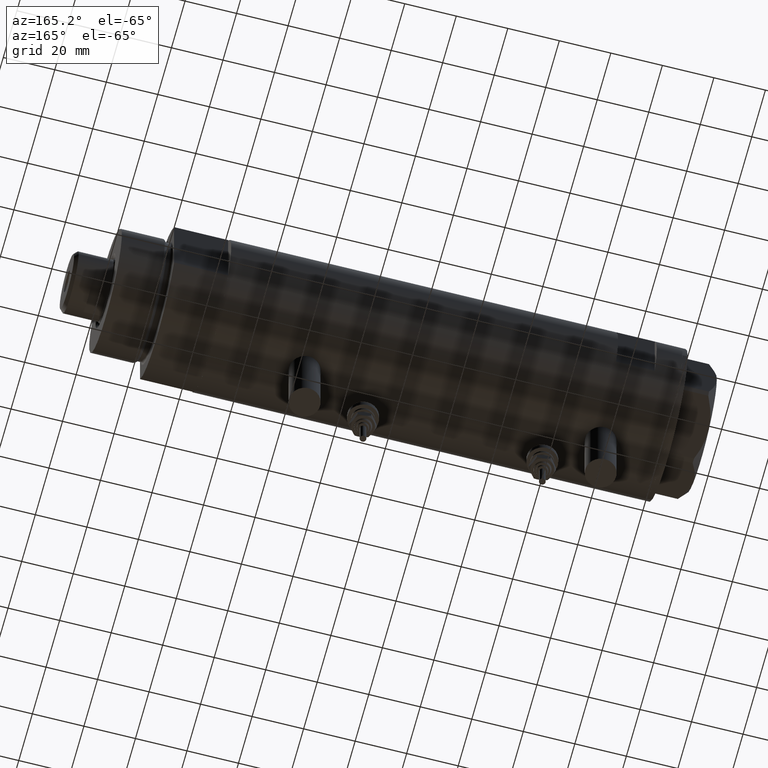
[diagram: clean part render]
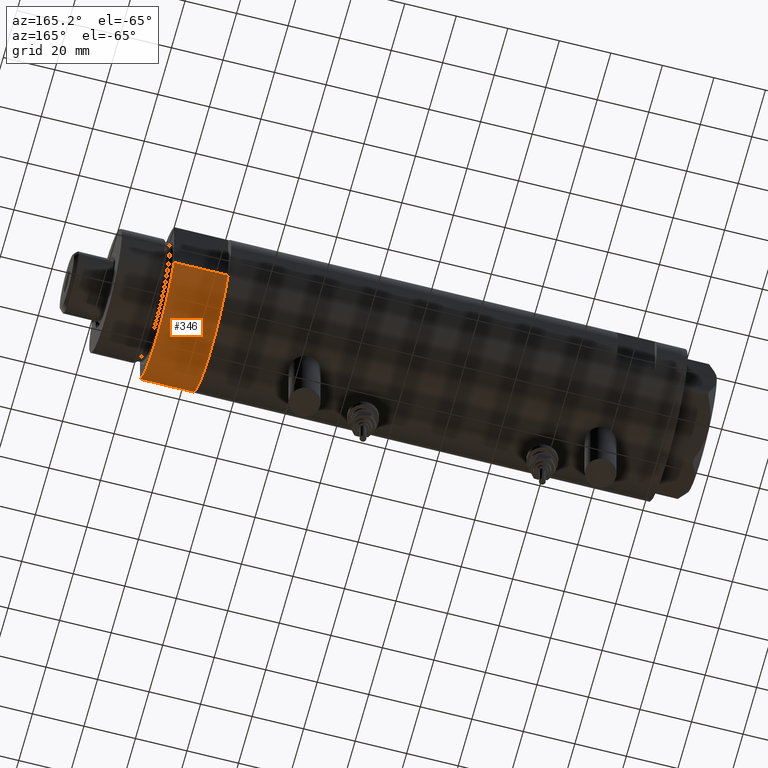
[diagram: same view with one face highlighted and labeled with its STEP entity id]
A machine part, auxiliary view. The second image highlights one B-rep face of the part: STEP entity #346.
In plain terms, the highlighted cylindrical surface (partial cylindrical patch) has radius 29.5 mm, axis along (-1, -0, 0).
Its self-contained STEP definition (entity closure, byte-faithful):
#36 = CARTESIAN_POINT ( 'NONE',  ( 15.66045976336583045, -25.00000000000000000, 21.00000000000000355 ) ) ;
#109 = CIRCLE ( 'NONE', #1351, 29.50000000000000355 ) ;
#177 = AXIS2_PLACEMENT_3D ( 'NONE', #3721, #2893, #1990 ) ;
#336 = DIRECTION ( 'NONE',  ( -0.000000000000000000, -0.000000000000000000, 1.000000000000000000 ) ) ;
#346 = ADVANCED_FACE ( 'NONE', ( #4848 ), #5087, .T. ) ;
#739 = EDGE_CURVE ( 'NONE', #1236, #3793, #3086, .T. ) ;
#955 = CARTESIAN_POINT ( 'NONE',  ( 15.66045976336583401, -25.00000000000000000, 0.000000000000000000 ) ) ;
#1016 = EDGE_CURVE ( 'NONE', #3899, #4170, #3800, .T. ) ;
#1236 = VERTEX_POINT ( 'NONE', #3059 ) ;
#1346 = DIRECTION ( 'NONE',  ( 1.000000000000000000, 0.000000000000000000, 0.000000000000000000 ) ) ;
#1349 = ORIENTED_EDGE ( 'NONE', *, *, #1016, .T. ) ;
#1351 = AXIS2_PLACEMENT_3D ( 'NONE', #4166, #4592, #1346 ) ;
#1514 = DIRECTION ( 'NONE',  ( 1.000000000000000000, 0.000000000000000000, 0.000000000000000000 ) ) ;
#1990 = DIRECTION ( 'NONE',  ( -1.000000000000000000, 0.000000000000000000, 0.000000000000000000 ) ) ;
#2297 = DIRECTION ( 'NONE',  ( 0.000000000000000000, 0.000000000000000000, 1.000000000000000000 ) ) ;
#2304 = VECTOR ( 'NONE', #3602, 1000.000000000000000 ) ;
#2440 = ORIENTED_EDGE ( 'NONE', *, *, #4377, .F. ) ;
#2674 = VECTOR ( 'NONE', #336, 1000.000000000000000 ) ;
#2893 = DIRECTION ( 'NONE',  ( -0.000000000000000000, -0.000000000000000000, -1.000000000000000000 ) ) ;
#2978 = EDGE_LOOP ( 'NONE', ( #2440, #3698, #5071, #1349 ) ) ;
#3059 = CARTESIAN_POINT ( 'NONE',  ( 15.66045976336583401, -25.00000000000000000, 0.000000000000000000 ) ) ;
#3086 = LINE ( 'NONE', #955, #2674 ) ;
#3602 = DIRECTION ( 'NONE',  ( -0.000000000000000000, -0.000000000000000000, 1.000000000000000000 ) ) ;
#3698 = ORIENTED_EDGE ( 'NONE', *, *, #739, .F. ) ;
#3721 = CARTESIAN_POINT ( 'NONE',  ( 0.000000000000000000, 0.000000000000000000, 21.00000000000000000 ) ) ;
#3793 = VERTEX_POINT ( 'NONE', #36 ) ;
#3800 = LINE ( 'NONE', #5595, #2304 ) ;
#3899 = VERTEX_POINT ( 'NONE', #5877 ) ;
#3959 = CIRCLE ( 'NONE', #4410, 29.50000000000000355 ) ;
#4010 = EDGE_CURVE ( 'NONE', #1236, #3899, #3959, .T. ) ;
#4166 = CARTESIAN_POINT ( 'NONE',  ( 0.000000000000000000, 0.000000000000000000, 21.00000000000000000 ) ) ;
#4170 = VERTEX_POINT ( 'NONE', #5218 ) ;
#4377 = EDGE_CURVE ( 'NONE', #3793, #4170, #109, .T. ) ;
#4410 = AXIS2_PLACEMENT_3D ( 'NONE', #5504, #2297, #1514 ) ;
#4592 = DIRECTION ( 'NONE',  ( 0.000000000000000000, 0.000000000000000000, 1.000000000000000000 ) ) ;
#4848 = FACE_OUTER_BOUND ( 'NONE', #2978, .T. ) ;
#5071 = ORIENTED_EDGE ( 'NONE', *, *, #4010, .T. ) ;
#5087 = CYLINDRICAL_SURFACE ( 'NONE', #177, 29.50000000000000355 ) ;
#5218 = CARTESIAN_POINT ( 'NONE',  ( 15.66045976336583045, 24.99999999999999645, 20.99999999999999645 ) ) ;
#5504 = CARTESIAN_POINT ( 'NONE',  ( 0.000000000000000000, 0.000000000000000000, 0.000000000000000000 ) ) ;
#5595 = CARTESIAN_POINT ( 'NONE',  ( 15.66045976336583401, 25.00000000000000000, 0.000000000000000000 ) ) ;
#5877 = CARTESIAN_POINT ( 'NONE',  ( 15.66045976336582690, 25.00000000000000000, 0.000000000000000000 ) ) ;